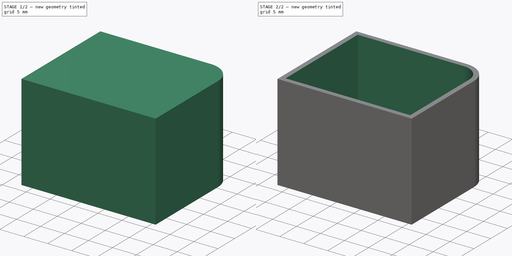
[diagram: build sequence overview — one tinted view per stage of 2, left to right]
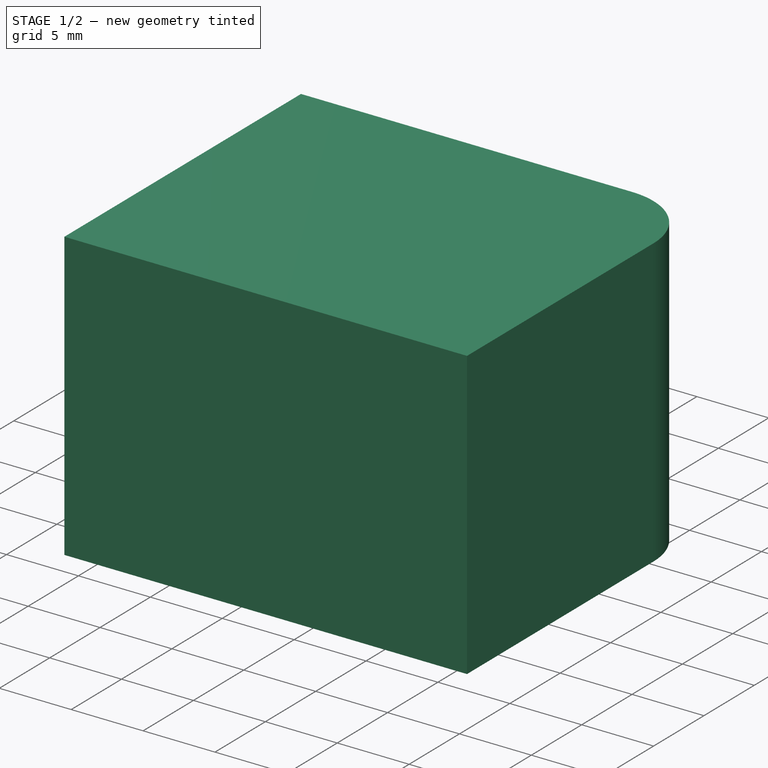
[diagram: stage 1 of 2 — iso view after this stage's code; geometry added in this stage tinted green]
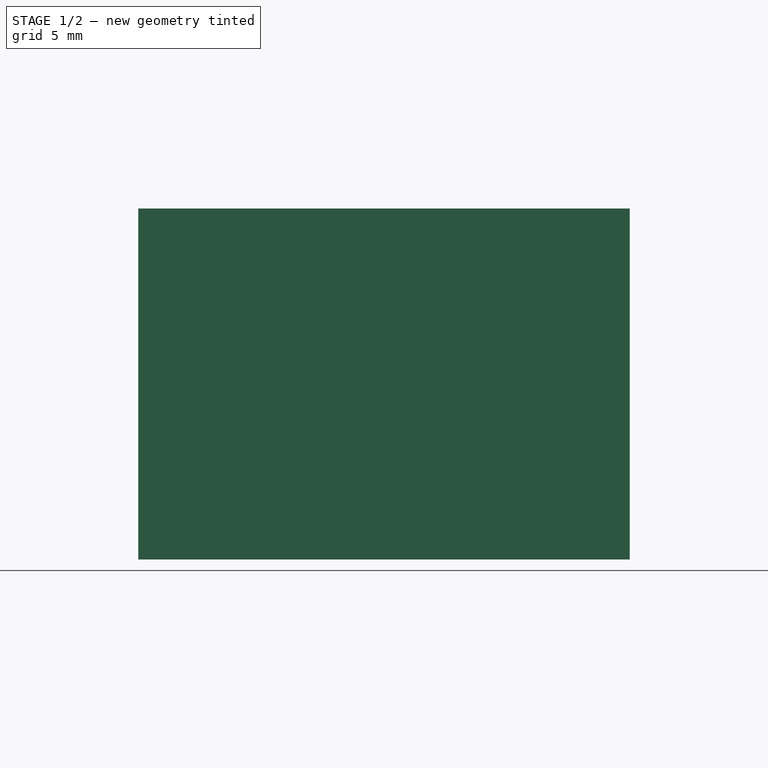
[diagram: stage 1 of 2 — front view after this stage's code; geometry added in this stage tinted green]
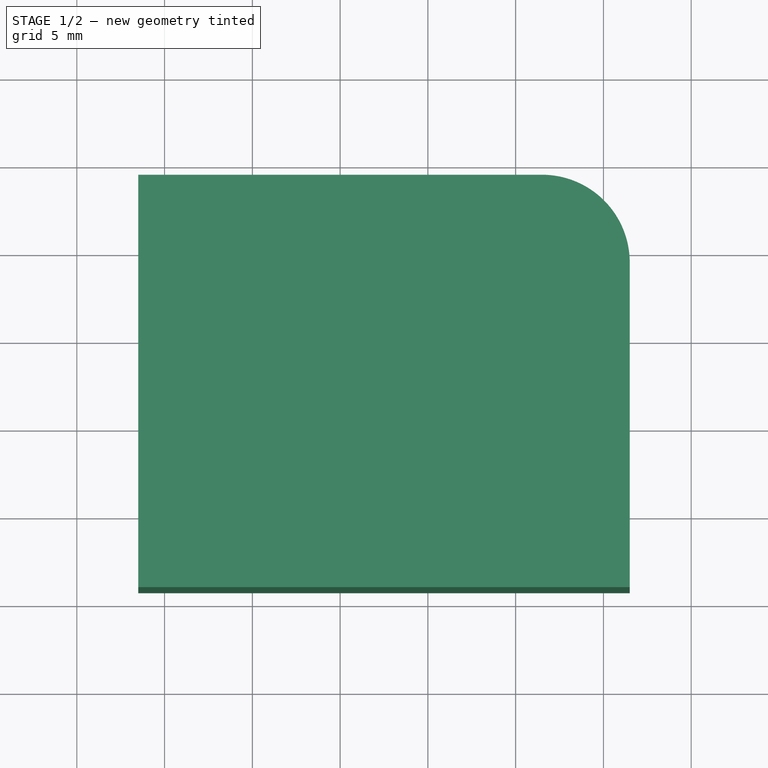
[diagram: stage 1 of 2 — top view after this stage's code; geometry added in this stage tinted green]
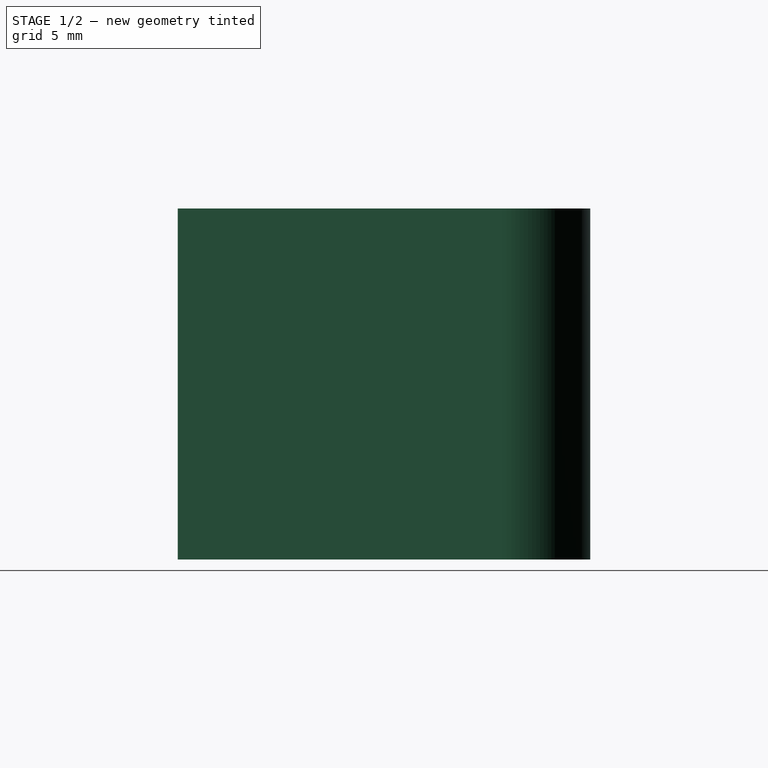
[diagram: stage 1 of 2 — right view after this stage's code; geometry added in this stage tinted green]
FCSTD DOCUMENT  (FreeCAD 0.20R29177 +426 (Git))
Label: 棉签洗板水收纳盒-增高垫
License: All rights reserved
LicenseURL: http://en.wikipedia.org/wiki/All_rights_reserved
objects: Sketcher::SketchObject×1, PartDesign::Pad×1, PartDesign::Thickness×1, PartDesign::Body×1
note: 6 computed .brp shape members not serialized (recipe doc carries the construction recipe); baked Part::Feature solids carry a one-line shape summary decoded from their .brp

FEATURE [Sketcher::SketchObject] Sketch
  FullyConstrained = true
  MapMode = 5
  Support = -> [XY_Plane]
  sketch-geometry (5):
    g0: LineSegment StartX=-11.5 StartY=14.25 StartZ=0 EndX=11.5 EndY=14.25 EndZ=0
    g1: LineSegment StartX=16.5 StartY=9.25 StartZ=0 EndX=16.5 EndY=-9.25 EndZ=0
    g2: LineSegment StartX=16.5 StartY=-9.25 StartZ=0 EndX=-11.5 EndY=-9.25 EndZ=0
    g3: LineSegment StartX=-11.5 StartY=-9.25 StartZ=0 EndX=-11.5 EndY=14.25 EndZ=0
    g4: ArcOfCircle CenterX=11.5 CenterY=9.25 CenterZ=0 NormalX=0 NormalY=0 NormalZ=1 AngleXU=0 Radius=5 StartAngle=1e-16 EndAngle=1.5708
  constraints (13):
    c: Coincident(g2,g3)
    c: Coincident(g3,g0)
    c: Horizontal(g0)
    c: Horizontal(g2)
    c: Vertical(g1)
    c: Vertical(g3)
    c: Coincident(g2,g1)
    c: Tangent(g1,g4) = 1.5708
    c: Tangent(g0,g4) = 1.5708
    c: Radius(g4) = 5
    c: DistanceX(g2,g2) = 28
    c: DistanceY(g3,g3) = 23.5
    c: Symmetric(g4,g2,g-1)
FEATURE [PartDesign::Pad] Pad
  Direction = (0,0,1)
  Length = 20
  Length2 = 10
  Profile = -> Sketch
  ReferenceAxis = -> Sketch [N_Axis]
  Type = 0
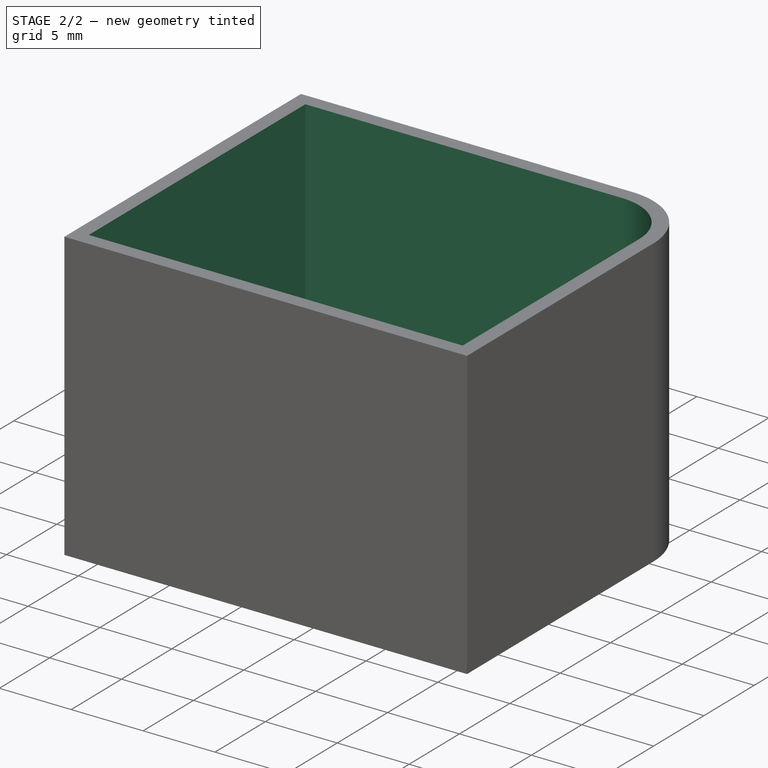
[diagram: stage 2 of 2 — iso view after this stage's code; geometry added in this stage tinted green]
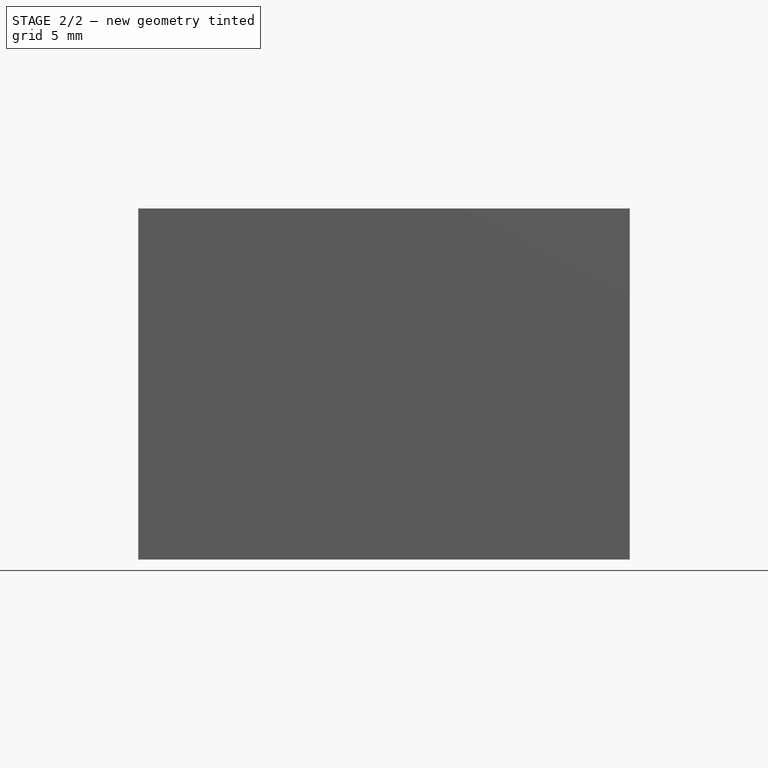
[diagram: stage 2 of 2 — front view after this stage's code; geometry added in this stage tinted green]
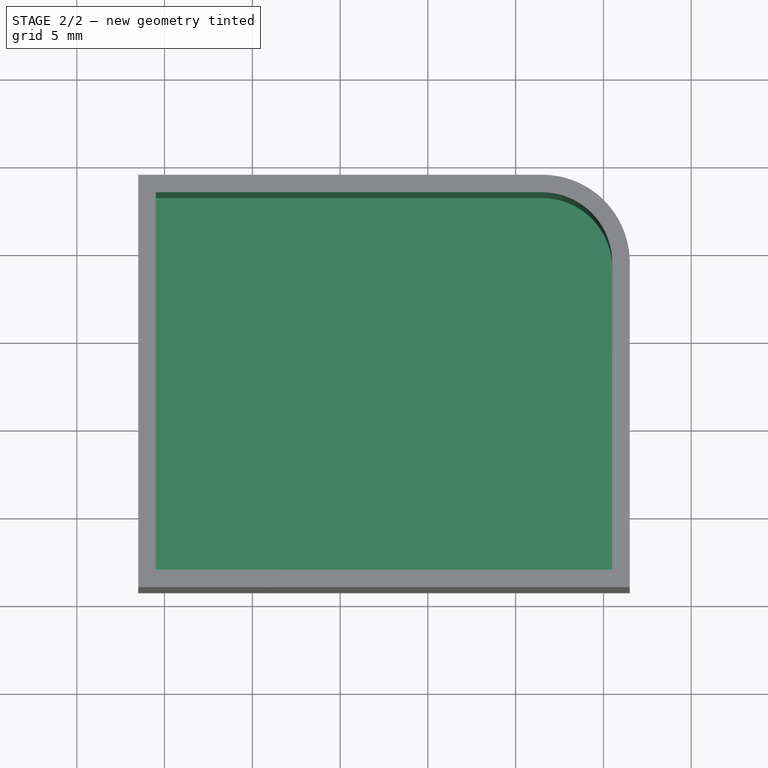
[diagram: stage 2 of 2 — top view after this stage's code; geometry added in this stage tinted green]
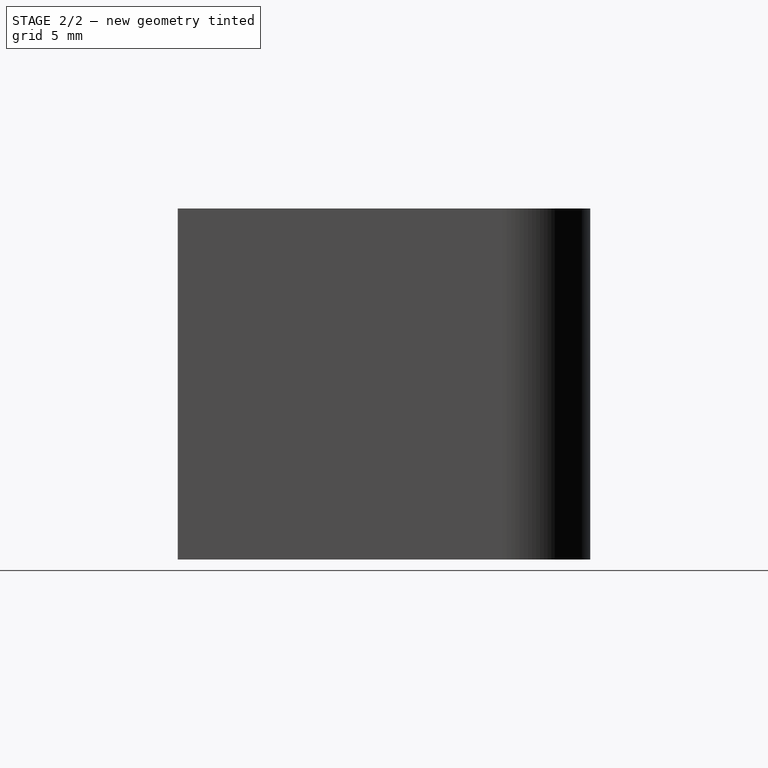
[diagram: stage 2 of 2 — right view after this stage's code; geometry added in this stage tinted green]
FEATURE [PartDesign::Thickness] Thickness
  Base = -> Pad [Face7]
  BaseFeature = -> Pad
  Intersection = false
  Join = 0
  Mode = 0
  Reversed = true
  SupportTransform = false
  Value = 1
FEATURE [PartDesign::Body] Body
  Group = -> [Sketch,Pad,Thickness]
  Origin = -> Origin
  Tip = -> Thickness
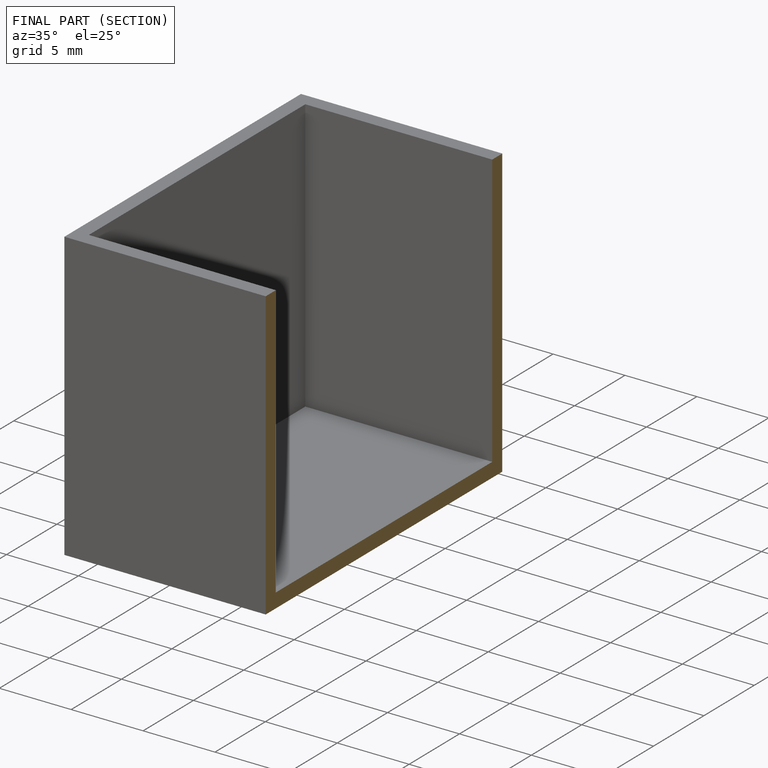
[diagram: finished part — half-section view (interior)]
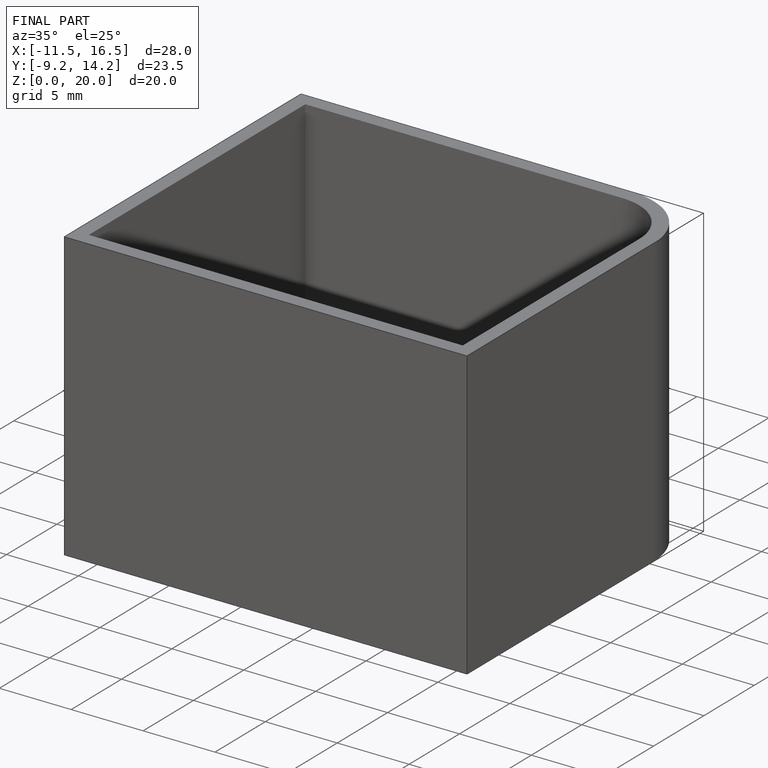
[diagram: finished part — iso view with bounding-box wireframe]
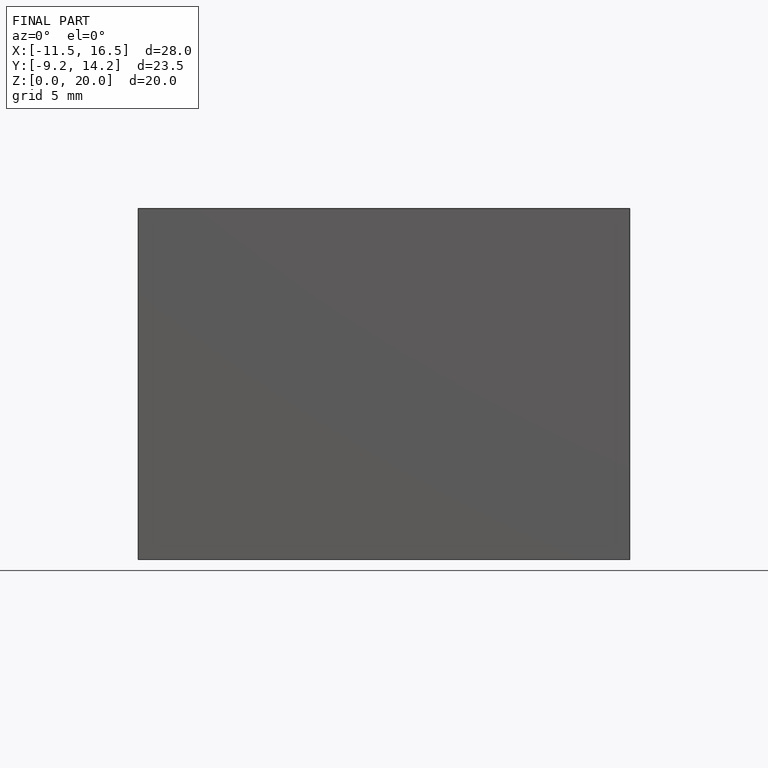
[diagram: finished part — front view with bounding-box wireframe]
